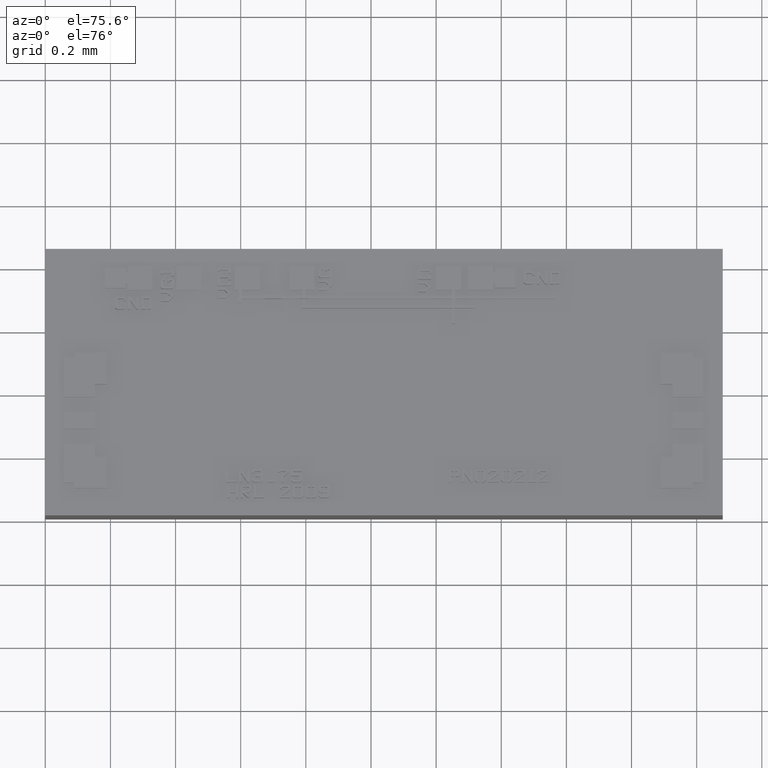
[diagram: clean part render]
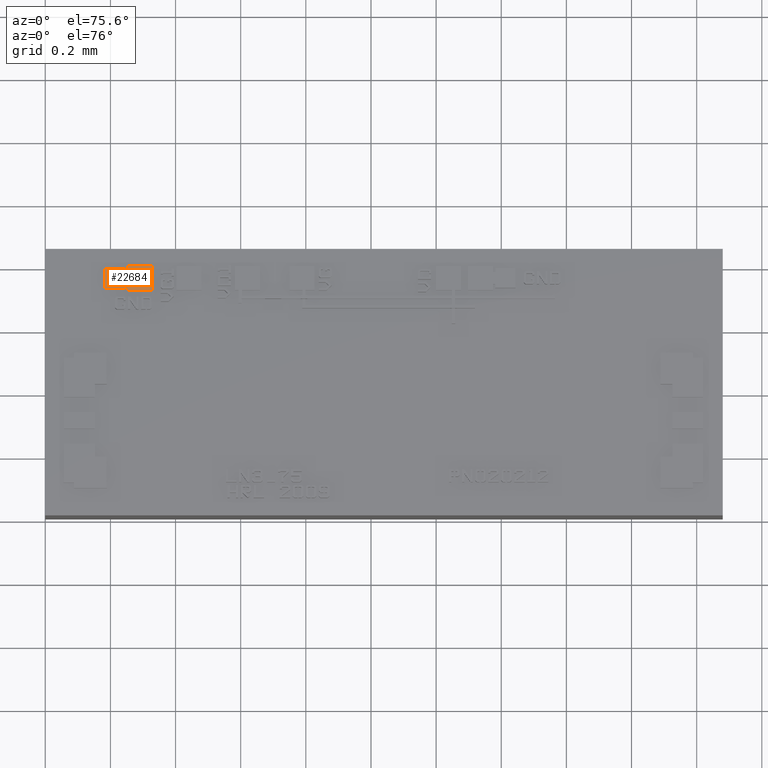
[diagram: same view with one face highlighted and labeled with its STEP entity id]
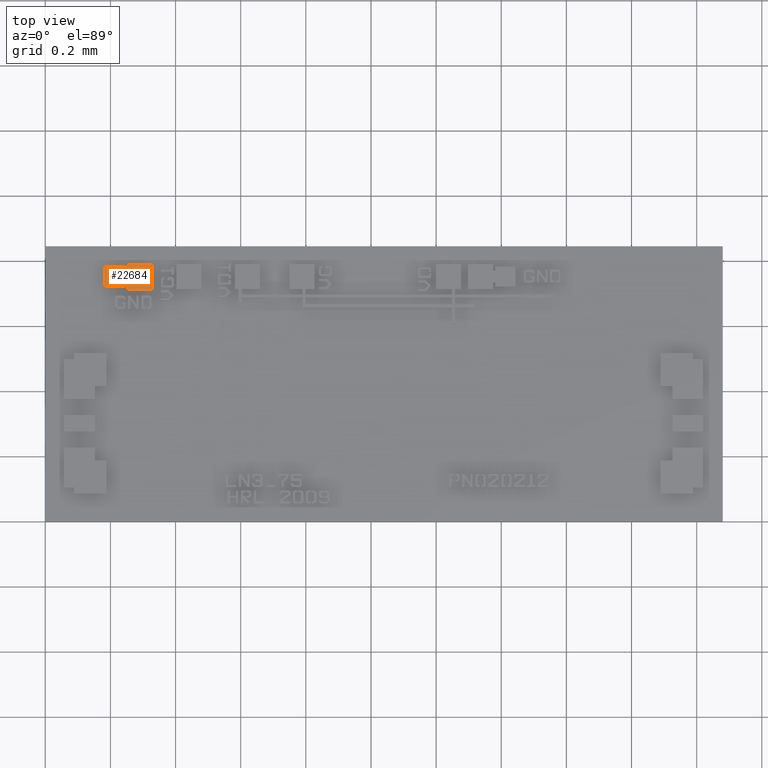
[diagram: same view with one face highlighted and labeled with its STEP entity id]
A machine part, auxiliary view. The second image highlights one B-rep face of the part: STEP entity #22684.
A second angle (top view) of the same face is appended — the face is thin or edge-on in the first view.
In plain terms, the highlighted planar face has unit normal (0, 0, 1).
Its self-contained STEP definition (entity closure, byte-faithful):
#22298=CARTESIAN_POINT('',(0.009665354330709,0.028858267716535,0.002047244094488));
#22299=VERTEX_POINT('',#22298);
#22300=CARTESIAN_POINT('',(0.009665354330709,0.028366141732283,0.002047244094488));
#22301=VERTEX_POINT('',#22300);
#22302=CARTESIAN_POINT('',(0.009665354330709,0.028858267716535,0.002047244094488));
#22303=DIRECTION('',(0.0,-1.0,0.0));
#22304=VECTOR('',#22303,0.000492125984252);
#22305=LINE('',#22302,#22304);
#22306=EDGE_CURVE('',#22299,#22301,#22305,.T.);
#22338=CARTESIAN_POINT('',(0.007224409448819,0.028366141732283,0.002047244094488));
#22339=VERTEX_POINT('',#22338);
#22340=CARTESIAN_POINT('',(0.009665354330709,0.028366141732283,0.002047244094488));
#22341=DIRECTION('',(-1.0,0.0,0.0));
#22342=VECTOR('',#22341,0.002440944881890);
#22343=LINE('',#22340,#22342);
#22344=EDGE_CURVE('',#22301,#22339,#22343,.T.);
#22369=CARTESIAN_POINT('',(0.007224409448819,0.030807086614173,0.002047244094488));
#22370=VERTEX_POINT('',#22369);
#22371=CARTESIAN_POINT('',(0.007224409448819,0.028366141732283,0.002047244094488));
#22372=DIRECTION('',(0.0,1.0,0.0));
#22373=VECTOR('',#22372,0.002440944881890);
#22374=LINE('',#22371,#22373);
#22375=EDGE_CURVE('',#22339,#22370,#22374,.T.);
#22400=CARTESIAN_POINT('',(0.009665354330709,0.030807086614173,0.002047244094488));
#22401=VERTEX_POINT('',#22400);
#22402=CARTESIAN_POINT('',(0.007224409448819,0.030807086614173,0.002047244094488));
#22403=DIRECTION('',(1.0,0.0,0.0));
#22404=VECTOR('',#22403,0.002440944881890);
#22405=LINE('',#22402,#22404);
#22406=EDGE_CURVE('',#22370,#22401,#22405,.T.);
#22431=CARTESIAN_POINT('',(0.009665354330709,0.030314960629921,0.002047244094488));
#22432=VERTEX_POINT('',#22431);
#22433=CARTESIAN_POINT('',(0.009665354330709,0.030807086614173,0.002047244094488));
#22434=DIRECTION('',(0.0,-1.0,0.0));
#22435=VECTOR('',#22434,0.000492125984252);
#22436=LINE('',#22433,#22435);
#22437=EDGE_CURVE('',#22401,#22432,#22436,.T.);
#22462=CARTESIAN_POINT('',(0.009940944881890,0.030314960629921,0.002047244094488));
#22463=VERTEX_POINT('',#22462);
#22464=CARTESIAN_POINT('',(0.009665354330709,0.030314960629921,0.002047244094488));
#22465=DIRECTION('',(1.0,0.0,0.0));
#22466=VECTOR('',#22465,0.000275590551181);
#22467=LINE('',#22464,#22466);
#22468=EDGE_CURVE('',#22432,#22463,#22467,.T.);
#22493=CARTESIAN_POINT('',(0.009940944881890,0.031102362204724,0.002047244094488));
#22494=VERTEX_POINT('',#22493);
#22495=CARTESIAN_POINT('',(0.009940944881890,0.030314960629921,0.002047244094488));
#22496=DIRECTION('',(0.0,1.0,0.0));
#22497=VECTOR('',#22496,0.000787401574803);
#22498=LINE('',#22495,#22497);
#22499=EDGE_CURVE('',#22463,#22494,#22498,.T.);
#22524=CARTESIAN_POINT('',(0.012972440944882,0.031102362204724,0.002047244094488));
#22525=VERTEX_POINT('',#22524);
#22526=CARTESIAN_POINT('',(0.009940944881890,0.031102362204724,0.002047244094488));
#22527=DIRECTION('',(1.0,0.0,0.0));
#22528=VECTOR('',#22527,0.003031496062992);
#22529=LINE('',#22526,#22528);
#22530=EDGE_CURVE('',#22494,#22525,#22529,.T.);
#22555=CARTESIAN_POINT('',(0.012972440944882,0.028070866141732,0.002047244094488));
#22556=VERTEX_POINT('',#22555);
#22557=CARTESIAN_POINT('',(0.012972440944882,0.031102362204724,0.002047244094488));
#22558=DIRECTION('',(0.0,-1.0,0.0));
#22559=VECTOR('',#22558,0.003031496062992);
#22560=LINE('',#22557,#22559);
#22561=EDGE_CURVE('',#22525,#22556,#22560,.T.);
#22586=CARTESIAN_POINT('',(0.009940944881890,0.028070866141732,0.002047244094488));
#22587=VERTEX_POINT('',#22586);
#22588=CARTESIAN_POINT('',(0.012972440944882,0.028070866141732,0.002047244094488));
#22589=DIRECTION('',(-1.0,0.0,0.0));
#22590=VECTOR('',#22589,0.003031496062992);
#22591=LINE('',#22588,#22590);
#22592=EDGE_CURVE('',#22556,#22587,#22591,.T.);
#22617=CARTESIAN_POINT('',(0.009940944881890,0.028858267716535,0.002047244094488));
#22618=VERTEX_POINT('',#22617);
#22619=CARTESIAN_POINT('',(0.009940944881890,0.028070866141732,0.002047244094488));
#22620=DIRECTION('',(0.0,1.0,0.0));
#22621=VECTOR('',#22620,0.000787401574803);
#22622=LINE('',#22619,#22621);
#22623=EDGE_CURVE('',#22587,#22618,#22622,.T.);
#22648=CARTESIAN_POINT('',(0.009940944881890,0.028858267716535,0.002047244094488));
#22649=DIRECTION('',(-1.0,0.0,0.0));
#22650=VECTOR('',#22649,0.000275590551181);
#22651=LINE('',#22648,#22650);
#22652=EDGE_CURVE('',#22618,#22299,#22651,.T.);
#22665=CARTESIAN_POINT('',(0.010150812801626,0.029586614173228,0.002047244094488));
#22666=DIRECTION('',(0.0,0.0,1.0));
#22667=DIRECTION('',(1.0,0.0,0.0));
#22668=AXIS2_PLACEMENT_3D('',#22665,#22666,#22667);
#22669=PLANE('',#22668);
#22670=ORIENTED_EDGE('',*,*,#22306,.F.);
#22671=ORIENTED_EDGE('',*,*,#22652,.F.);
#22672=ORIENTED_EDGE('',*,*,#22623,.F.);
#22673=ORIENTED_EDGE('',*,*,#22592,.F.);
#22674=ORIENTED_EDGE('',*,*,#22561,.F.);
#22675=ORIENTED_EDGE('',*,*,#22530,.F.);
#22676=ORIENTED_EDGE('',*,*,#22499,.F.);
#22677=ORIENTED_EDGE('',*,*,#22468,.F.);
#22678=ORIENTED_EDGE('',*,*,#22437,.F.);
#22679=ORIENTED_EDGE('',*,*,#22406,.F.);
#22680=ORIENTED_EDGE('',*,*,#22375,.F.);
#22681=ORIENTED_EDGE('',*,*,#22344,.F.);
#22682=EDGE_LOOP('',(#22670,#22671,#22672,#22673,#22674,#22675,#22676,#22677,#22678,#22679,#22680,#22681));
#22683=FACE_OUTER_BOUND('',#22682,.T.);
#22684=ADVANCED_FACE('',(#22683),#22669,.T.);